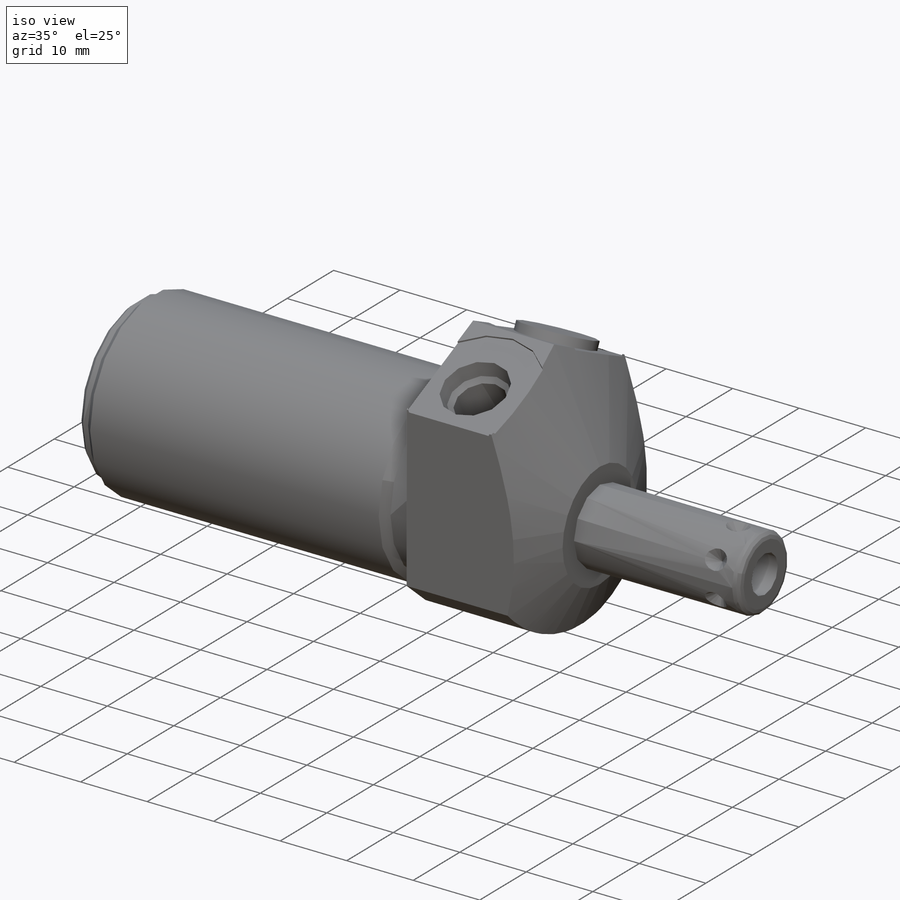
[diagram: iso view]
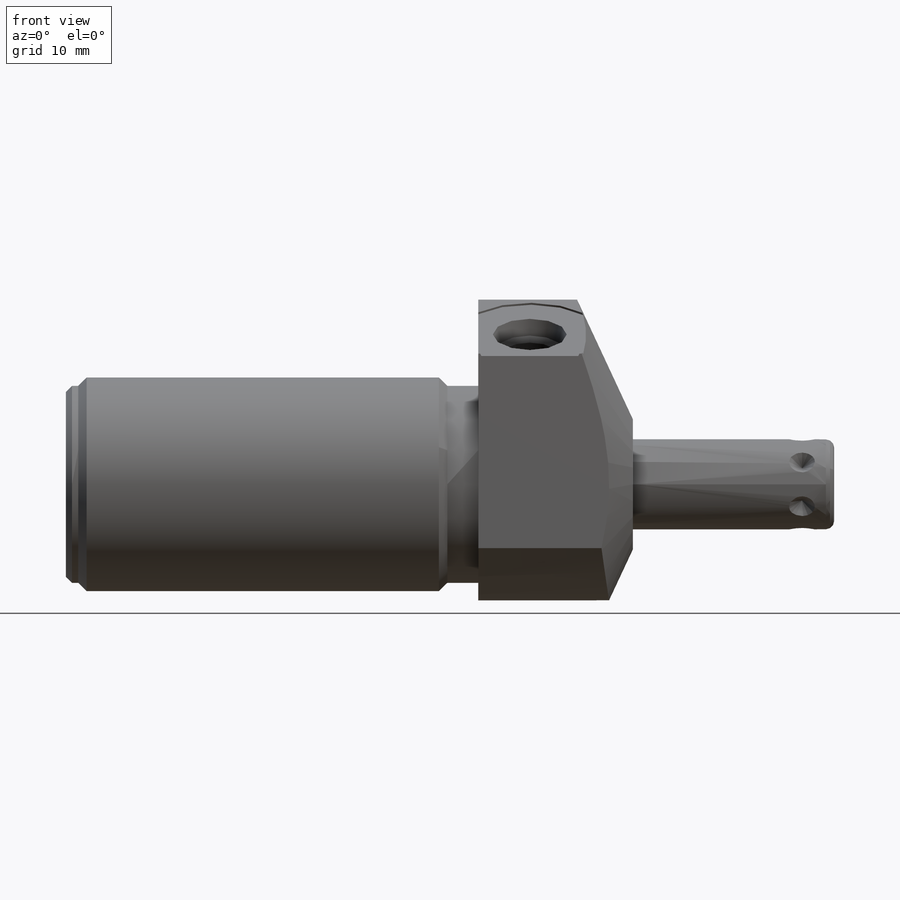
[diagram: front view]
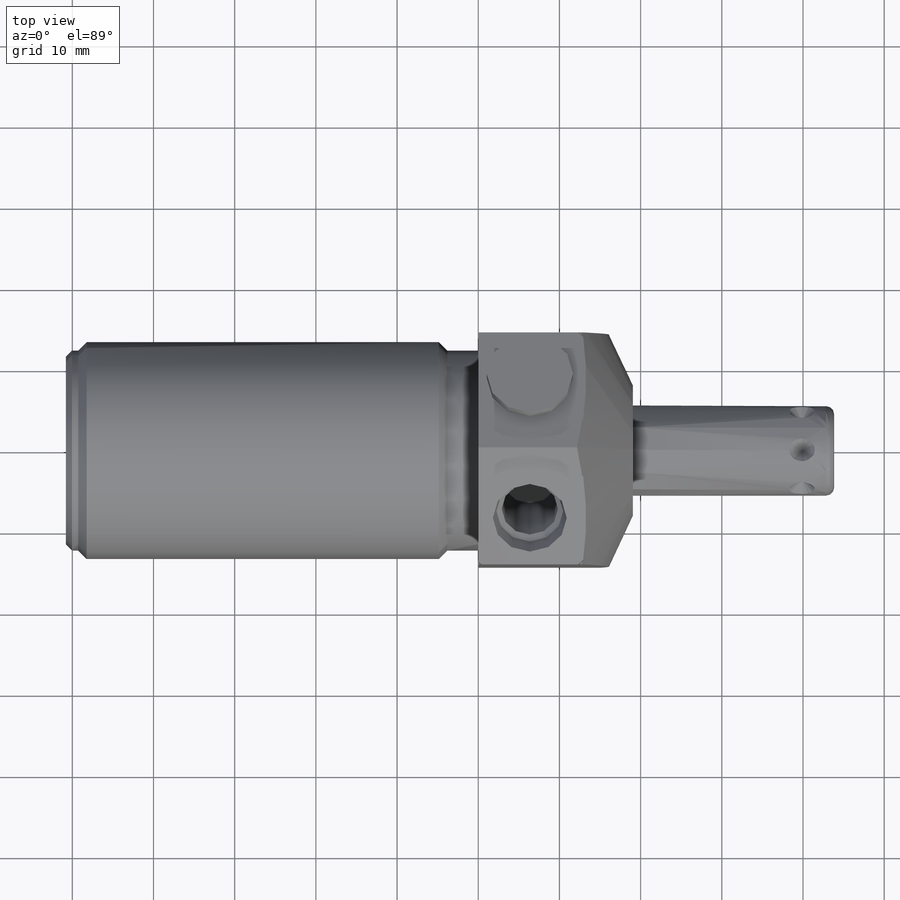
[diagram: top view]
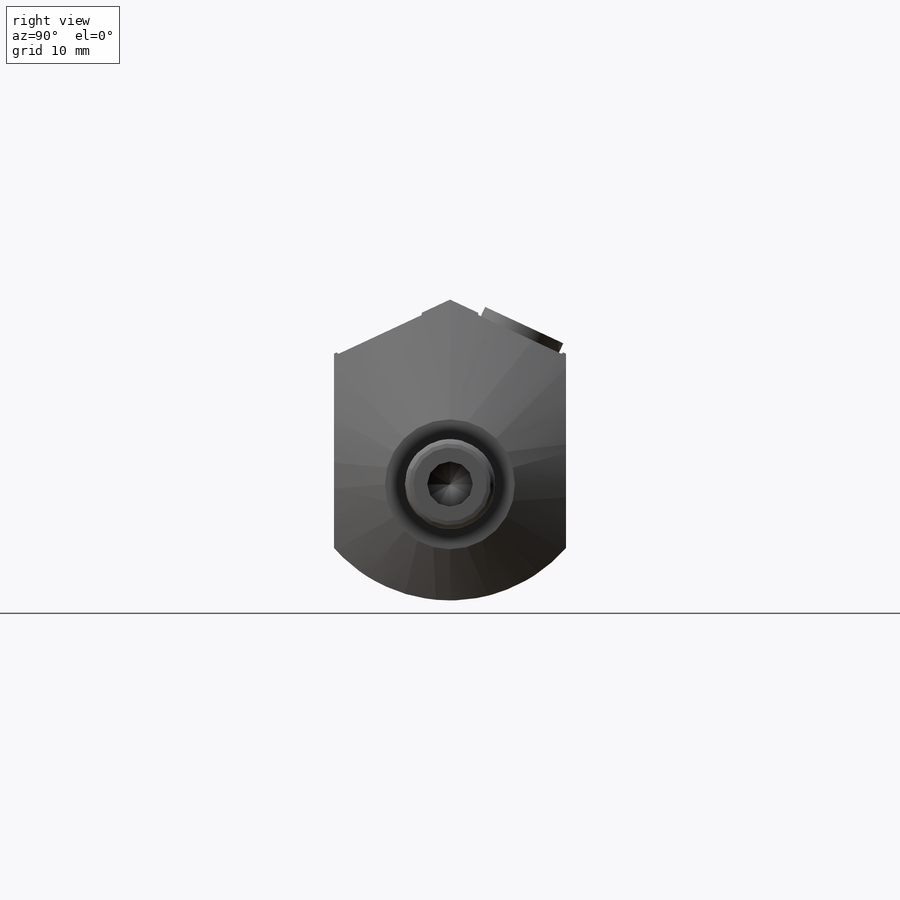
[diagram: right view]
SOLIDWORKS PART (.sldprt)
format: sldprt  version: not decoded by parser v0  size: 582,144 bytes
history: native  units: mm
features: sketch x14, plane x13, cut_revolve x7, cut_extrude x4, extrude x2, material x1, chamfer x1, revolve x1, pattern_circular x1 (+13 scaffold rows collapsed)
feature tree (57):
  scaffold x13  (default folders/planes/origin — collapsed)
  material  "Alloy Steel"
  plane  "Plane1"
  sketch  "Sketch1"  dims[D1=38.1mm]
  extrude  "Extrude1"  Depth=19.05mm
  plane  "Plane2"
  sketch  "Sketch2"  dims[D1=26.7208mm D2=4.7498mm]
  cut_extrude  "Cut-Extrude1"  [1 undecoded]
  plane  "Plane4"
  sketch  "Sketch4"  dims[c1.D1=28.575mm c1.D2=14.2875mm c2.D2=65.0deg c2.D3=~11.344778mm]
  cut_extrude  "Cut-Extrude3"  [1 undecoded]
  plane  "Plane6"
  sketch  "Sketch6"  dims[c1.D1=8.001mm c1.D2=34.8488mm c2.D2=25.0deg]
  cut_revolve  "Cut-Revolve2"  Angle=360deg
  plane  "Plane7"
  sketch  "S2D0002"  dims[D1=12.192mm]
  cut_revolve  "Cut-Revolve3"  Angle=360deg
  plane  "Plane8"
  sketch  "Sketch19"  dims[D1=17.3228mm]
  cut_extrude  "Cut-Extrude4"  Depth=0.254mm
  sketch  "Sketch8"  dims[D1=12.192mm]
  cut_revolve  "Cut-Revolve4"  Angle=360deg
  sketch  "Sketch20"  dims[D1=17.3228mm]
  cut_extrude  "Cut-Extrude5"  Depth=0.254mm
  plane  "Plane10"
  sketch  "Sketch10"  dims[c1.D1=24.638mm c1.D2=3.81mm c1.D3=1.0414mm c2.D3=45.0deg]
  cut_revolve  "Cut-Revolve6"  Angle=360deg
  plane  "Plane12"
  sketch  "Sketch12"  dims[c1.D1=24.638mm c1.D2=1.524mm c1.D3=1.0414mm c2.D3=45.0deg]
  cut_revolve  "Cut-Revolve8"  Angle=360deg
  chamfer  "Chamfer1"  Distance=0.762mm Angle=45deg
  plane  "Plane13"
  sketch  "Sketch13"  dims[c1.D2=1.016mm c1.D1=20.2692mm c1.D3=11.1125mm c2.D1=43.8404mm]
  revolve  "Revolve1"  Angle=360deg
  plane  "Plane14"
  sketch  "S2D0001"  dims[c1.D1=5.6134mm c1.D2=2.8067mm c2.D2=59.0deg c2.D3=10.16mm]
  cut_revolve  "Cut-Revolve9"  Angle=360deg
  plane  "Plane15"
  sketch  "Sketch15"
  extrude  "Extrude2"  Depth=1.27mm
  plane  "Plane16"
  plane  "Plane17"
  sketch  "Sketch16"  dims[c1.D1=3.9624mm c1.D2=3.175mm c1.D3=~2.245064mm c2.D3=45.0deg]
  cut_revolve  "Cut-Revolve10"  Angle=360deg
  pattern_circular  "CirPattern1"  Count=6 Angle=360deg
decode coverage: 27 of 30 modeling features carry decoded parameters
note: ~ marks probable driven/reference dimensions
note: 2 parameter values undecoded
note: suppression state not decoded; provenance and decode notes live in map.json
